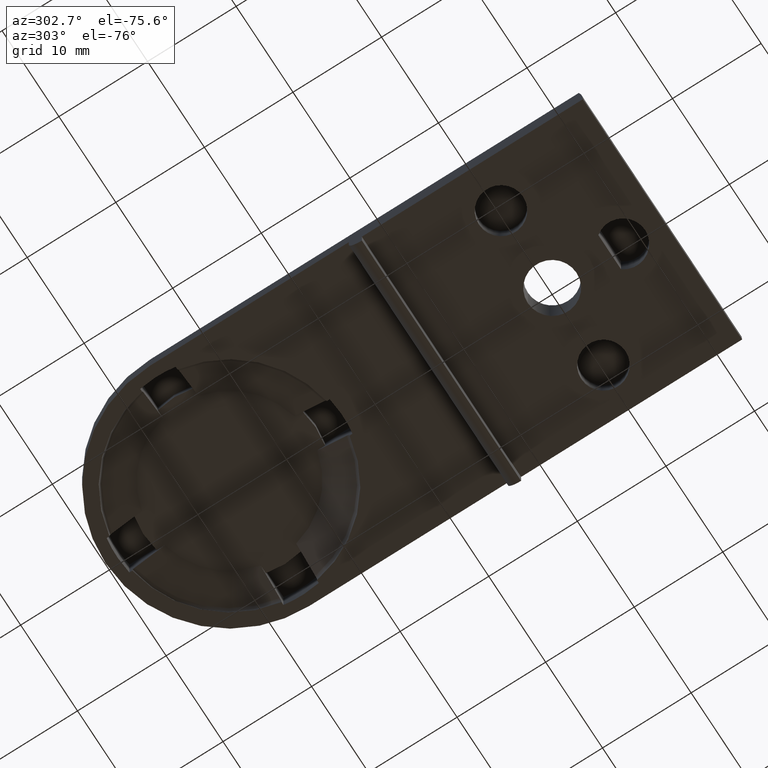
[diagram: clean part render]
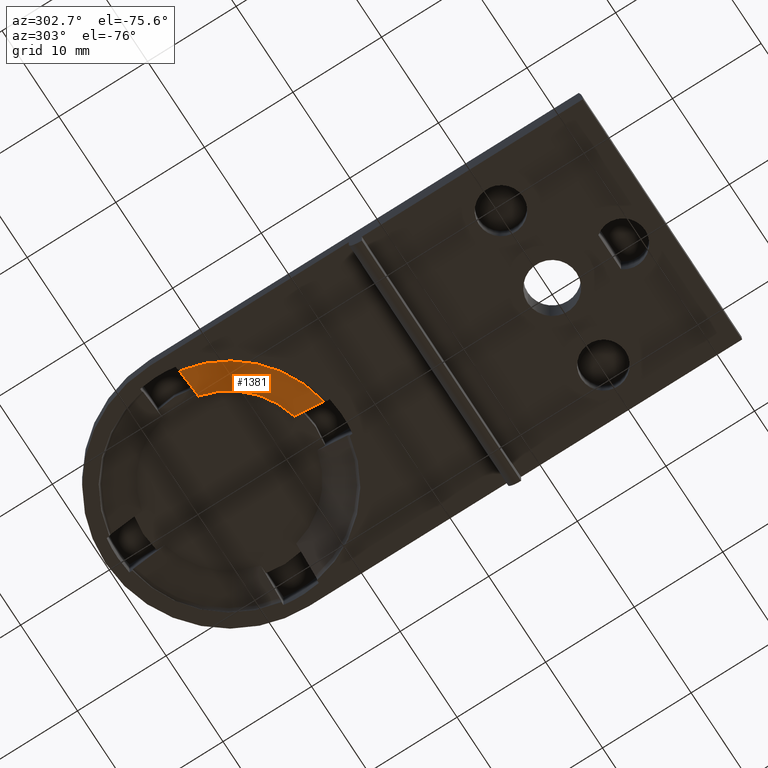
[diagram: same view with one face highlighted and labeled with its STEP entity id]
A machine part, auxiliary view. The second image highlights one B-rep face of the part: STEP entity #1381.
In plain terms, the highlighted face is a freeform B-spline surface patch.
Its self-contained STEP definition (entity closure, byte-faithful):
#390=CARTESIAN_POINT('',(-11.953013791203830,34.422453215370808,1.583357116465088));
#391=VERTEX_POINT('',#390);
#402=CARTESIAN_POINT('',(-2.0,24.469014318024620,1.583357116465088));
#403=VERTEX_POINT('',#402);
#404=CARTESIAN_POINT('',(0.0,36.421942699357714,1.583357116465088));
#405=DIRECTION('',(1.224647E-016,0.0,-1.0));
#406=DIRECTION('',(0.0,-1.0,0.0));
#407=AXIS2_PLACEMENT_3D('',#404,#405,#406);
#408=CIRCLE('',#407,12.119096372637614);
#409=EDGE_CURVE('',#403,#391,#408,.T.);
#689=CARTESIAN_POINT('',(-2.0,27.823943965069645,2.999999999999542));
#690=VERTEX_POINT('',#689);
#697=CARTESIAN_POINT('',(-8.598117470600300,34.422453215370808,2.999999999999542));
#698=VERTEX_POINT('',#697);
#699=CARTESIAN_POINT('',(0.0,36.421942699357714,2.999999999999542));
#700=DIRECTION('',(-1.224647E-016,0.0,1.0));
#701=DIRECTION('',(0.0,-1.0,0.0));
#702=AXIS2_PLACEMENT_3D('',#699,#700,#701);
#703=CIRCLE('',#702,8.827546784629305);
#704=EDGE_CURVE('',#698,#690,#703,.T.);
#1214=CARTESIAN_POINT('',(-11.953013791203830,34.422453215370808,1.583357116465088));
#1215=CARTESIAN_POINT('',(-11.299309655766592,34.422453215370808,1.860847793146885));
#1216=CARTESIAN_POINT('',(-10.181536918083111,34.422453215370808,2.334310405332420));
#1217=CARTESIAN_POINT('',(-9.062697366164230,34.422453215370808,2.805247186488749));
#1218=CARTESIAN_POINT('',(-8.598117470600300,34.422453215370808,2.999999999999542));
#1219=B_SPLINE_CURVE_WITH_KNOTS('',3,(#1214,#1215,#1216,#1217,#1218),.UNSPECIFIED.,.F.,.U.,(4,1,4),(0.0,2.130486604051564,3.641734202872100),.UNSPECIFIED.);
#1220=EDGE_CURVE('',#391,#698,#1219,.T.);
#1354=CARTESIAN_POINT('',(-1.999884429117601,24.468994980930635,1.583357116465088));
#1355=CARTESIAN_POINT('',(-10.526743788291537,25.895650034010011,1.583357116465086));
#1356=CARTESIAN_POINT('',(-11.953033414208575,34.422570525876381,1.583357116465086));
#1357=CARTESIAN_POINT('',(-1.456715320933209,27.715418553145426,2.999999999999547));
#1358=CARTESIAN_POINT('',(-7.667677558102056,28.754593739095785,2.999999999999546));
#1359=CARTESIAN_POINT('',(-8.706586566998224,34.965600505302596,2.999999999999546));
#1367=(BOUNDED_SURFACE()B_SPLINE_SURFACE(2,1,((#1354,#1357),(#1355,#1358),(#1356,#1359)),.UNSPECIFIED.,.F.,.F.,.U.)B_SPLINE_SURFACE_WITH_KNOTS((3,3),(2,2),(0.0,1.0),(0.0,3.583458629562574),.UNSPECIFIED.)GEOMETRIC_REPRESENTATION_ITEM()RATIONAL_B_SPLINE_SURFACE(((1.0,1.0),(0.814086390231529,0.814086390231529),(1.0,1.0)))REPRESENTATION_ITEM('')SURFACE());
#1368=ORIENTED_EDGE('',*,*,#1220,.T.);
#1369=ORIENTED_EDGE('',*,*,#704,.T.);
#1370=CARTESIAN_POINT('',(-2.0,27.823943965069645,2.999999999999542));
#1371=CARTESIAN_POINT('',(-2.0,27.307205592248124,2.783385240787133));
#1372=CARTESIAN_POINT('',(-2.0,26.188427449295943,2.312275717873359));
#1373=CARTESIAN_POINT('',(-2.0,25.070669788313523,1.838751845619289));
#1374=CARTESIAN_POINT('',(-2.0,24.469014318024620,1.583357116465088));
#1375=B_SPLINE_CURVE_WITH_KNOTS('',3,(#1370,#1371,#1372,#1373,#1374),.UNSPECIFIED.,.F.,.U.,(4,1,4),(0.0,1.680912271786643,3.641764910197965),.UNSPECIFIED.);
#1376=EDGE_CURVE('',#690,#403,#1375,.T.);
#1377=ORIENTED_EDGE('',*,*,#1376,.T.);
#1378=ORIENTED_EDGE('',*,*,#409,.T.);
#1379=EDGE_LOOP('',(#1368,#1369,#1377,#1378));
#1380=FACE_OUTER_BOUND('',#1379,.T.);
#1381=ADVANCED_FACE('',(#1380),#1367,.T.);